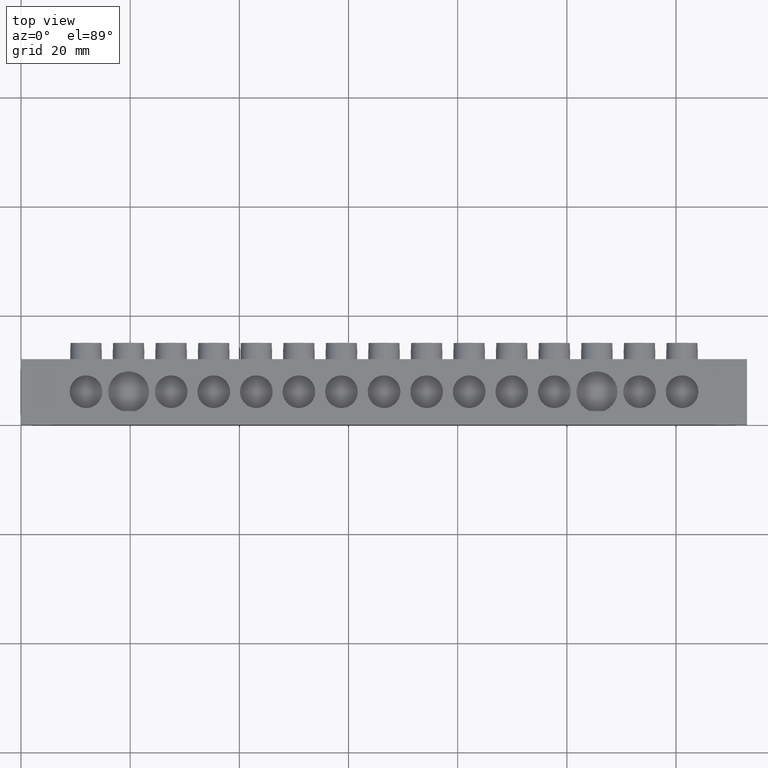
[diagram: clean part render]
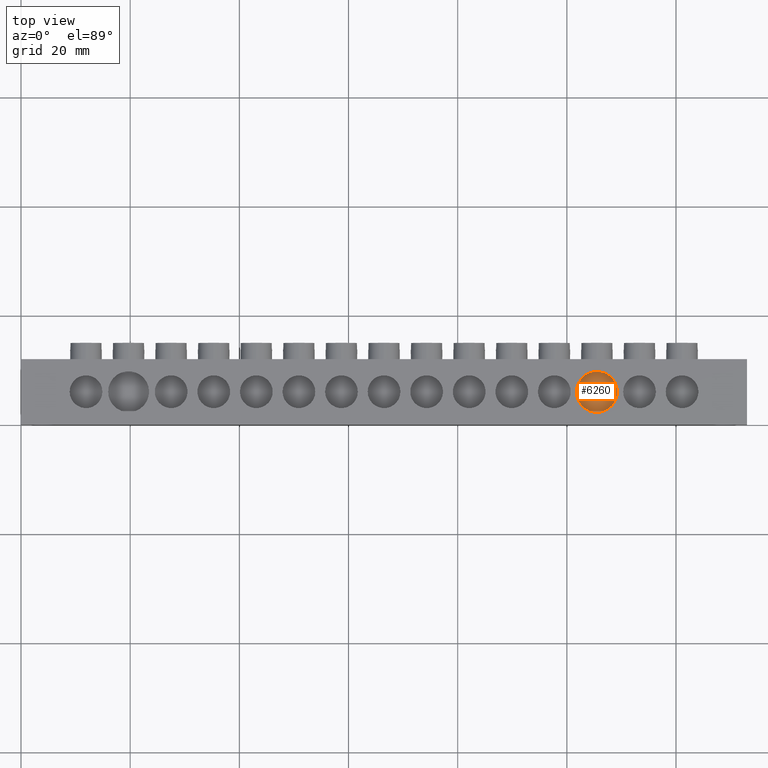
[diagram: same view with one face highlighted and labeled with its STEP entity id]
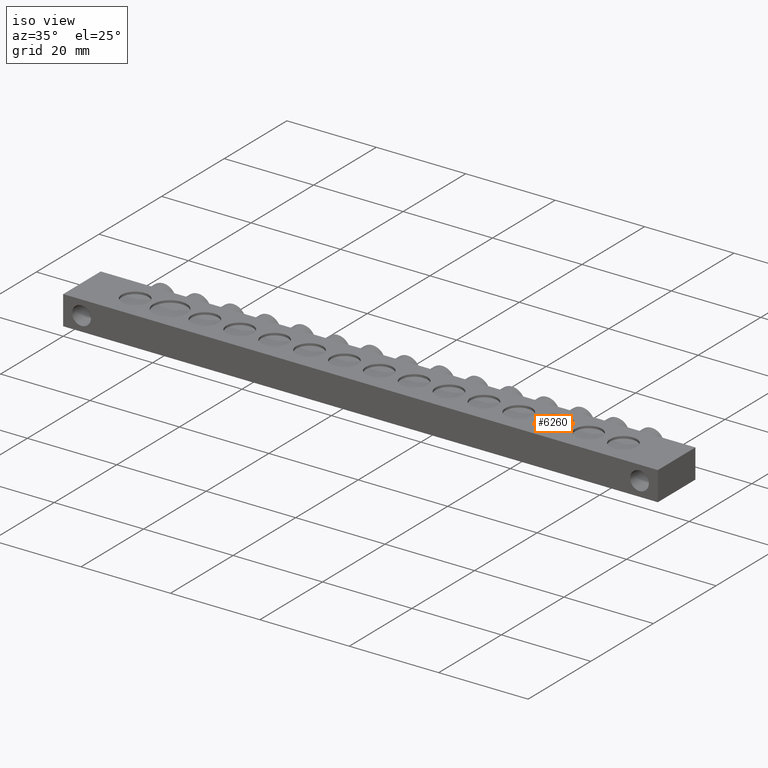
[diagram: same view with one face highlighted and labeled with its STEP entity id]
A machine part, top view. The second image highlights one B-rep face of the part: STEP entity #6260.
A second angle (iso view) of the same face is appended — the face is thin or edge-on in the first view.
In plain terms, the highlighted planar face has unit normal (0, 0, 1).
Its self-contained STEP definition (entity closure, byte-faithful):
#1304 = EDGE_LOOP ( 'NONE', ( #5358, #5387 ) ) ;
#2202 = AXIS2_PLACEMENT_3D ( 'NONE', #2808, #2809, #2771 ) ;
#2771 = DIRECTION ( 'NONE',  ( 1.000000000000000000, 0.0000000000000000000, -0.0000000000000000000 ) ) ;
#2804 = PLANE ( 'NONE',  #2202 ) ;
#2807 = FACE_OUTER_BOUND ( 'NONE', #1304, .T. ) ;
#2808 = CARTESIAN_POINT ( 'NONE',  ( 0.5000000000000000000, 11.50000000000000000, 6.000000000000000000 ) ) ;
#2809 = DIRECTION ( 'NONE',  ( 0.0000000000000000000, 0.0000000000000000000, 1.000000000000000000 ) ) ;
#2987 = CARTESIAN_POINT ( 'NONE',  ( 101.7500000000000000, 5.999999999999950300, 5.999999999999998200 ) ) ;
#3036 = CARTESIAN_POINT ( 'NONE',  ( 109.2500000000000100, 5.999999999999949400, 5.999999999999998200 ) ) ;
#4157 = EDGE_CURVE ( 'NONE', #9456, #9457, #6557, .T. ) ;
#5358 = ORIENTED_EDGE ( 'NONE', *, *, #5911, .F. ) ;
#5387 = ORIENTED_EDGE ( 'NONE', *, *, #4157, .F. ) ;
#5911 = EDGE_CURVE ( 'NONE', #9457, #9456, #6883, .T. ) ;
#6260 = ADVANCED_FACE ( 'NONE', ( #2807 ), #2804, .T. ) ;
#6535 = AXIS2_PLACEMENT_3D ( 'NONE', #9316, #9324, #9343 ) ;
#6557 = CIRCLE ( 'NONE', #6535, 3.750000000000003600 ) ;
#6883 = CIRCLE ( 'NONE', #6884, 3.750000000000003600 ) ;
#6884 = AXIS2_PLACEMENT_3D ( 'NONE', #9690, #9682, #9678 ) ;
#9316 = CARTESIAN_POINT ( 'NONE',  ( 105.5000000000000100, 5.999999999999949400, 5.999999999999998200 ) ) ;
#9324 = DIRECTION ( 'NONE',  ( -0.0000000000000000000, -0.0000000000000000000, -1.000000000000000000 ) ) ;
#9343 = DIRECTION ( 'NONE',  ( 1.000000000000000000, 0.0000000000000000000, 0.0000000000000000000 ) ) ;
#9456 = VERTEX_POINT ( 'NONE', #2987 ) ;
#9457 = VERTEX_POINT ( 'NONE', #3036 ) ;
#9678 = DIRECTION ( 'NONE',  ( 1.000000000000000000, 0.0000000000000000000, 0.0000000000000000000 ) ) ;
#9682 = DIRECTION ( 'NONE',  ( -0.0000000000000000000, -0.0000000000000000000, -1.000000000000000000 ) ) ;
#9690 = CARTESIAN_POINT ( 'NONE',  ( 105.5000000000000100, 5.999999999999949400, 5.999999999999998200 ) ) ;